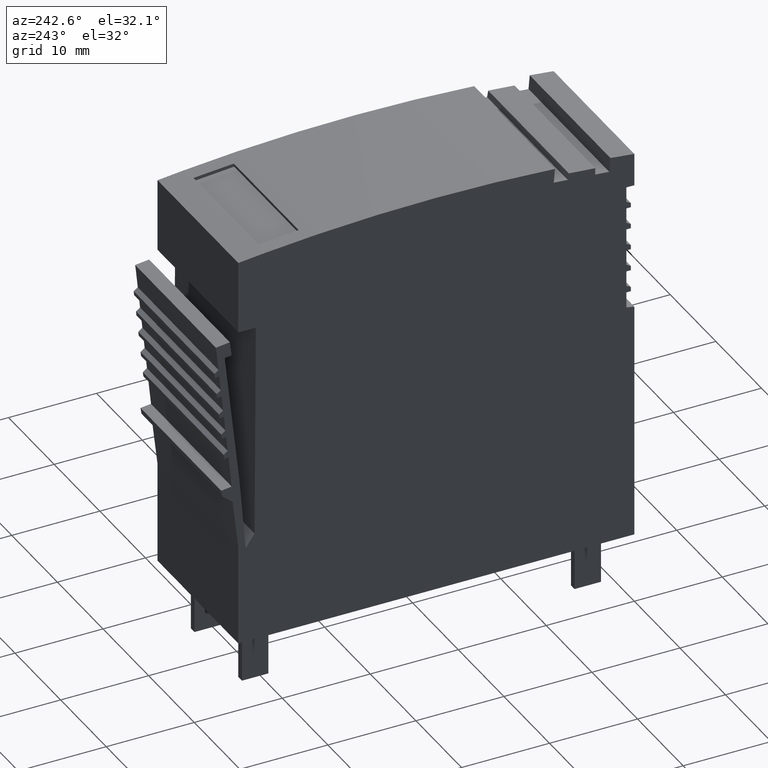
[diagram: clean part render]
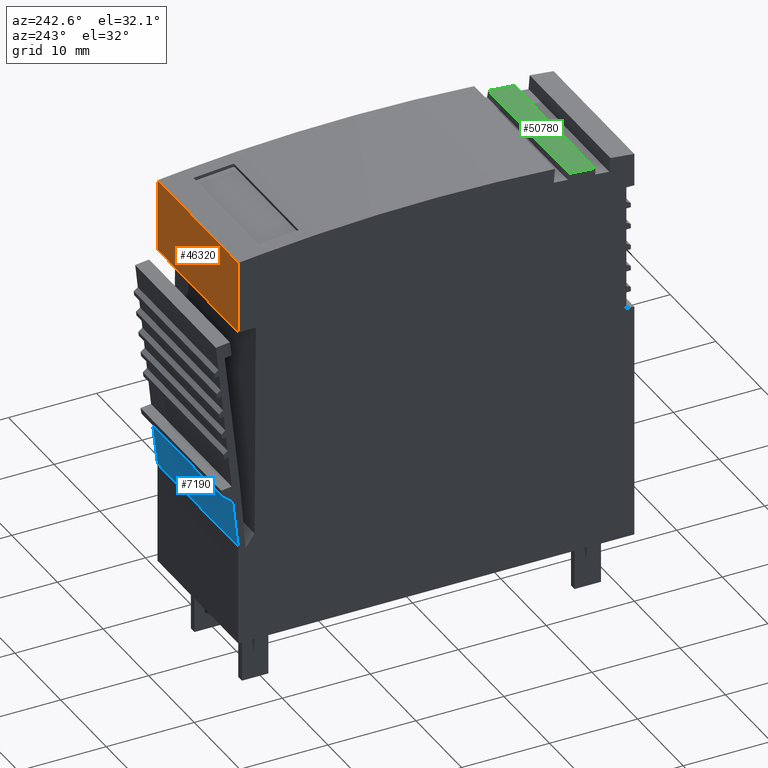
[diagram: same view with three faces highlighted in distinct colors, each labeled with its STEP entity id]
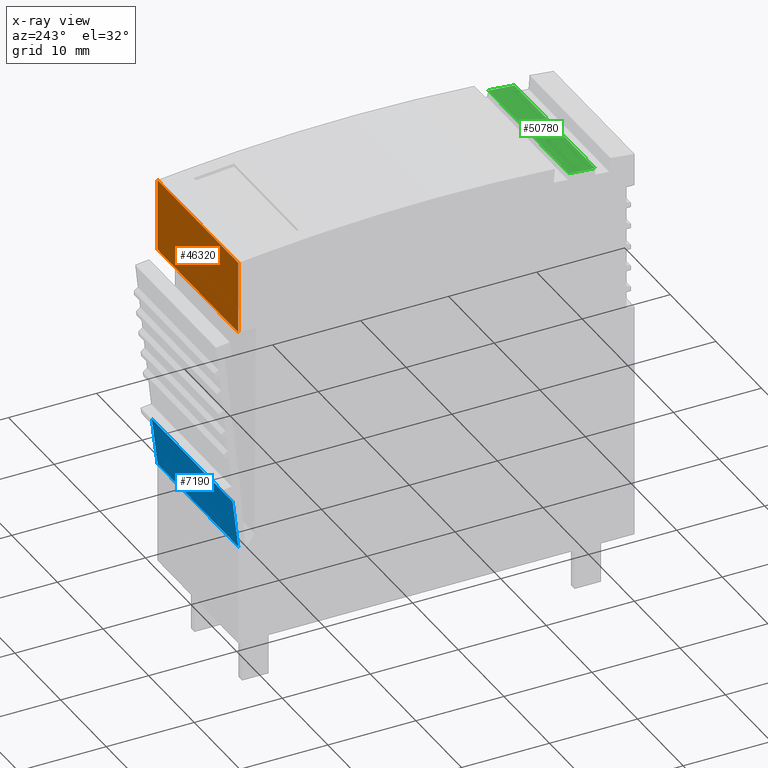
[diagram: x-ray of the same camera — body ghosted, the three highlighted faces saturated]
A machine part, auxiliary view with three faces highlighted in distinct colors.
The next image is the same camera in x-ray (body ghosted, the three faces saturated) — at least one of them is partly hidden behind the body in this view.
Their STEP definitions:

[orange] entity #46320 — the highlighted planar face has unit normal (0, 1, -0).
#3530=CARTESIAN_POINT('',(121.676055138715,92.3842102263611,
-2.14452701454791));
#3540=VERTEX_POINT('',#3530);
#3570=CARTESIAN_POINT('',(121.676055138715,36.9601229990142,
-2.14452701942092));
#3580=DIRECTION('',(3.82813310477567E-21,1.,8.79221417989464E-11));
#3590=VECTOR('',#3580,1.);
#3600=LINE('',#3570,#3590);
#3610=CARTESIAN_POINT('',(121.676055138699,100.664568115907,
-2.14452701381988));
#3620=VERTEX_POINT('',#3610);
#3630=EDGE_CURVE('',#3540,#3620,#3600,.T.);
#11320=CARTESIAN_POINT('',(121.676055137805,100.664568117451,
-19.8445270161484));
#11330=VERTEX_POINT('',#11320);
#11360=CARTESIAN_POINT('',(121.676055137937,36.9601230005704,
-19.8445270217494));
#11370=DIRECTION('',(-3.82813310477567E-21,-1.,-8.79221417989464E-11));
#11380=VECTOR('',#11370,1.);
#11390=LINE('',#11360,#11380);
#11400=CARTESIAN_POINT('',(121.676055137937,92.3842102279174,
-19.8445270168764));
#11410=VERTEX_POINT('',#11400);
#11420=EDGE_CURVE('',#11330,#11410,#11390,.T.);
#45920=CARTESIAN_POINT('',(121.676055138238,92.3842102273151,
-12.9945270158363));
#45930=DIRECTION('',(4.39608349722675E-11,-8.79221417989464E-11,1.));
#45940=VECTOR('',#45930,1.);
#45950=LINE('',#45920,#45940);
#45960=EDGE_CURVE('',#11410,#3540,#45950,.T.);
#46160=CARTESIAN_POINT('',(121.676055138209,56.459082183372,
-13.6445270124035));
#46170=DIRECTION('',(-1.,-3.69976612561218E-23,4.39608349722675E-11));
#46180=DIRECTION('',(4.39608349722675E-11,-8.79221417989464E-11,1.));
#46190=AXIS2_PLACEMENT_3D('',#46160,#46170,#46180);
#46200=PLANE('',#46190);
#46210=CARTESIAN_POINT('',(121.676055137278,100.664568115836,
-3.14452701609898));
#46220=DIRECTION('',(4.39609574369474E-11,8.79221417989464E-11,-1.));
#46230=VECTOR('',#46220,1.);
#46240=LINE('',#46210,#46230);
#46250=EDGE_CURVE('',#3620,#11330,#46240,.T.);
#46260=ORIENTED_EDGE('',*,*,#46250,.T.);
#46270=ORIENTED_EDGE('',*,*,#3630,.T.);
#46280=ORIENTED_EDGE('',*,*,#45960,.T.);
#46290=ORIENTED_EDGE('',*,*,#11420,.T.);
#46300=EDGE_LOOP('',(#46290,#46280,#46270,#46260));
#46310=FACE_OUTER_BOUND('',#46300,.T.);
#46320=ADVANCED_FACE('',(#46310),#46200,.T.);

[blue] entity #7190 — the highlighted planar face has unit normal (0, 0.9932, -0.1164).
#950=CARTESIAN_POINT('',(121.025990238268,72.424846973089,
-2.1445270162742));
#960=VERTEX_POINT('',#950);
#6690=CARTESIAN_POINT('',(121.676055221158,66.8758302085801,
-2.14452701679066));
#6700=VERTEX_POINT('',#6690);
#6730=CARTESIAN_POINT('',(125.180667753546,36.9601229990142,
-2.14452701957498));
#6740=DIRECTION('',(0.116353878946392,-0.993207820576403,
-9.24399714167001E-11));
#6750=VECTOR('',#6740,1.);
#6760=LINE('',#6730,#6750);
#6770=EDGE_CURVE('',#960,#6700,#6760,.T.);
#6890=CARTESIAN_POINT('',(121.676055229504,66.8758301323375,
-19.5445270179543));
#6900=DIRECTION('',(-0.993207820576403,-0.116353878946392,
3.34321628499427E-11));
#6910=DIRECTION('',(0.116353878946392,-0.993207820576403,
-9.24399725072866E-11));
#6920=AXIS2_PLACEMENT_3D('',#6890,#6900,#6910);
#6930=PLANE('',#6920);
#6940=CARTESIAN_POINT('',(125.180667752767,36.9601230005704,
-19.8445270217494));
#6950=DIRECTION('',(0.116353878946392,-0.993207820576403,
-8.7324958836541E-11));
#6960=VECTOR('',#6950,1.);
#6970=LINE('',#6940,#6960);
#6980=CARTESIAN_POINT('',(121.025990237501,72.4248469745456,
-19.8445270186313));
#6990=VERTEX_POINT('',#6980);
#7000=CARTESIAN_POINT('',(121.676055229491,66.8758301323639,
-19.8445270191192));
#7010=VERTEX_POINT('',#7000);
#7020=EDGE_CURVE('',#6990,#7010,#6970,.T.);
#7030=ORIENTED_EDGE('',*,*,#7020,.T.);
#7040=CARTESIAN_POINT('',(121.025990237798,72.4248469739819,
-12.9945270175911));
#7050=DIRECTION('',(4.33013142169252E-11,-8.22924096579122E-11,1.));
#7060=VECTOR('',#7050,1.);
#7070=LINE('',#7040,#7060);
#7080=EDGE_CURVE('',#6990,#960,#7070,.T.);
#7090=ORIENTED_EDGE('',*,*,#7080,.F.);
#7100=ORIENTED_EDGE('',*,*,#6770,.F.);
#7110=CARTESIAN_POINT('',(121.676055229547,66.8758301338503,
-12.994527018079));
#7120=DIRECTION('',(4.39608349722675E-11,-8.79221417989464E-11,1.));
#7130=VECTOR('',#7120,1.);
#7140=LINE('',#7110,#7130);
#7150=EDGE_CURVE('',#7010,#6700,#7140,.T.);
#7160=ORIENTED_EDGE('',*,*,#7150,.T.);
#7170=EDGE_LOOP('',(#7160,#7100,#7090,#7030));
#7180=FACE_OUTER_BOUND('',#7170,.T.);
#7190=ADVANCED_FACE('',(#7180),#6930,.T.);

[green] entity #50780 — the highlighted planar face has unit normal (0, 0.0832, -0.9965).
#4330=CARTESIAN_POINT('',(159.244378852798,100.489562641575,
-2.14452701548681));
#4340=VERTEX_POINT('',#4330);
#4370=CARTESIAN_POINT('',(111.23636600137,104.496821982194,
-2.14452701302401));
#4380=DIRECTION('',(0.996534425424037,-0.0831813617632293,
-5.11219750405834E-11));
#4390=VECTOR('',#4380,1.);
#4400=LINE('',#4370,#4390);
#4410=CARTESIAN_POINT('',(162.23398212907,100.240018556286,
-2.14452701564017));
#4420=VERTEX_POINT('',#4410);
#4430=EDGE_CURVE('',#4340,#4420,#4400,.T.);
#10560=CARTESIAN_POINT('',(162.23398212907,100.240018557842,
-19.8445270161857));
#10570=VERTEX_POINT('',#10560);
#10600=CARTESIAN_POINT('',(111.236365734798,104.496822006001,
-19.8445270158115));
#10610=DIRECTION('',(0.996534425424037,-0.0831813617632293,
-7.31348348397611E-12));
#10620=VECTOR('',#10610,1.);
#10630=LINE('',#10600,#10620);
#10640=CARTESIAN_POINT('',(159.244378852798,100.489562643131,
-19.8445270161638));
#10650=VERTEX_POINT('',#10640);
#10660=EDGE_CURVE('',#10650,#10570,#10630,.T.);
#50450=CARTESIAN_POINT('',(159.244378852798,100.489562642529,
-12.9945270151236));
#50460=DIRECTION('',(3.7666382607192E-27,-8.79221417989464E-11,1.));
#50470=VECTOR('',#50460,1.);
#50480=LINE('',#50450,#50470);
#50490=EDGE_CURVE('',#10650,#4340,#50480,.T.);
#50620=CARTESIAN_POINT('',(162.23398212907,100.240018557842,
-19.8445270161857));
#50630=DIRECTION('',(-0.0831813617632293,-0.996534425424037,
-8.76174410596637E-11));
#50640=DIRECTION('',(0.996534425424037,-0.0831813617632293,
-7.31348348397611E-12));
#50650=AXIS2_PLACEMENT_3D('',#50620,#50630,#50640);
#50660=PLANE('',#50650);
#50670=ORIENTED_EDGE('',*,*,#10660,.F.);
#50680=CARTESIAN_POINT('',(162.23398212907,100.240018557239,
-12.9945270151456));
#50690=DIRECTION('',(3.7666382607192E-27,-8.79221417989464E-11,1.));
#50700=VECTOR('',#50690,1.);
#50710=LINE('',#50680,#50700);
#50720=EDGE_CURVE('',#10570,#4420,#50710,.T.);
#50730=ORIENTED_EDGE('',*,*,#50720,.F.);
#50740=ORIENTED_EDGE('',*,*,#4430,.T.);
#50750=ORIENTED_EDGE('',*,*,#50490,.T.);
#50760=EDGE_LOOP('',(#50750,#50740,#50730,#50670));
#50770=FACE_OUTER_BOUND('',#50760,.T.);
#50780=ADVANCED_FACE('',(#50770),#50660,.F.);